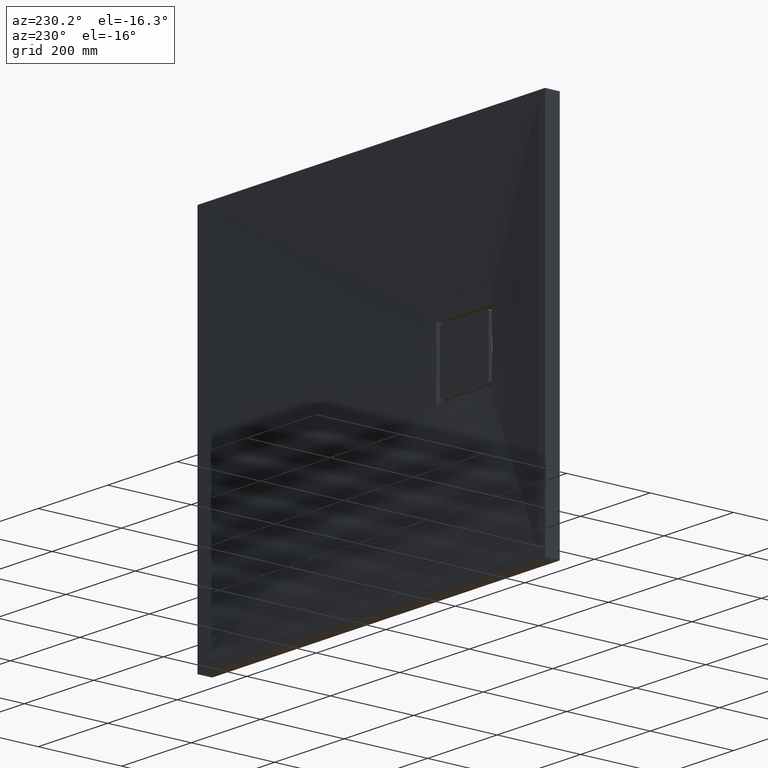
[diagram: clean part render]
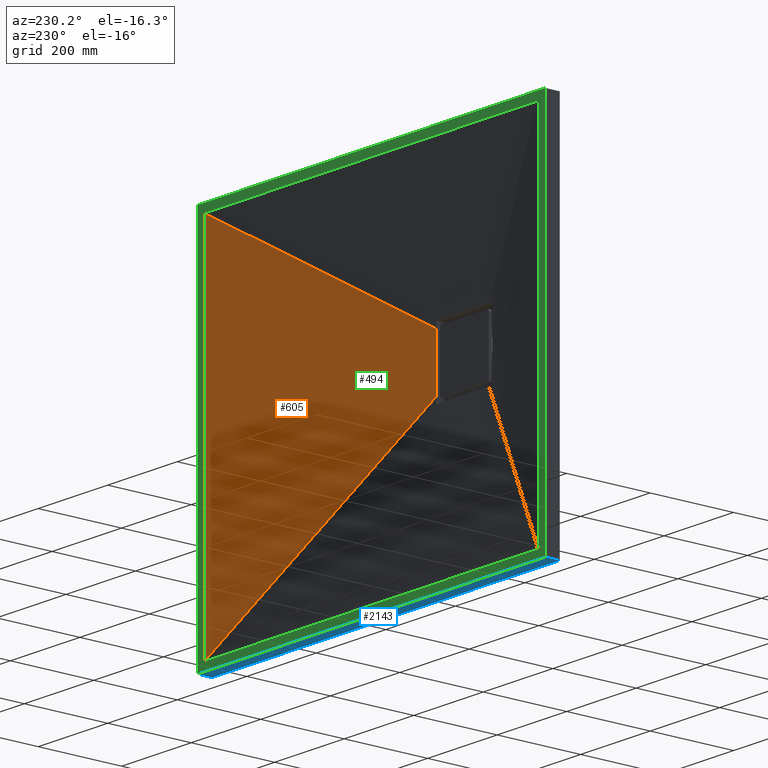
[diagram: same view with three faces highlighted in distinct colors, each labeled with its STEP entity id]
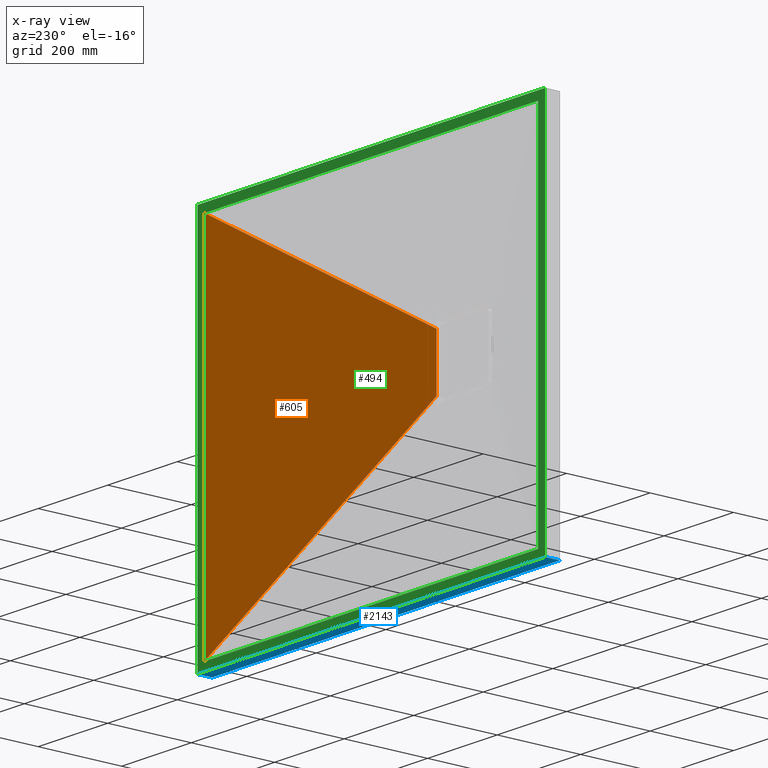
[diagram: x-ray of the same camera — body ghosted, the three highlighted faces saturated]
A machine part, auxiliary view with three faces highlighted in distinct colors.
The next image is the same camera in x-ray (body ghosted, the three faces saturated) — at least one of them is partly hidden behind the body in this view.
Their STEP definitions:

[orange] entity #605 — the highlighted face is a freeform B-spline surface patch.
#7 = FACE_OUTER_BOUND ( 'NONE', #867, .T. ) ;
#202 = CARTESIAN_POINT ( 'NONE',  ( 144.7934134289221500, 27.49999999999996800, -241.6899328634097800 ) ) ;
#208 = ORIENTED_EDGE ( 'NONE', *, *, #3138, .T. ) ;
#246 = LINE ( 'NONE', #1237, #1826 ) ;
#262 = ORIENTED_EDGE ( 'NONE', *, *, #2421, .T. ) ;
#302 = ORIENTED_EDGE ( 'NONE', *, *, #1813, .F. ) ;
#311 = VERTEX_POINT ( 'NONE', #1523 ) ;
#489 = DIRECTION ( 'NONE',  ( -0.8716803467127168800, -0.01950320447823043100, 0.4896866326232296500 ) ) ;
#539 = CARTESIAN_POINT ( 'NONE',  ( -170.4918016738412500, 20.00000000000001800, 10.19685271837222900 ) ) ;
#563 = CARTESIAN_POINT ( 'NONE',  ( -169.9999999999999400, 20.05373855218489300, 21.61634702286110600 ) ) ;
#576 = CARTESIAN_POINT ( 'NONE',  ( 480.0000000000000000, 35.00000000000002800, -430.0000000000002300 ) ) ;
#605 = ADVANCED_FACE ( 'NONE', ( #7 ), #668, .F. ) ;
#668 = B_SPLINE_SURFACE_WITH_KNOTS ( 'NONE', 3, 1, ( 
 ( #3263, #2466 ),
 ( #1276, #2375 ),
 ( #3217, #2995 ),
 ( #2991, #3150 ),
 ( #3095, #3235 ),
 ( #3173, #1307 ),
 ( #2802, #1026 ),
 ( #2538, #2719 ),
 ( #2883, #1408 ),
 ( #3067, #3121 ),
 ( #1614, #539 ),
 ( #2075, #3111 ),
 ( #2416, #1236 ),
 ( #2454, #2225 ),
 ( #2189, #2451 ),
 ( #2294, #2449 ),
 ( #2279, #2353 ),
 ( #2573, #2795 ) ),
 .UNSPECIFIED., .F., .F., .F.,
 ( 4, 2, 2, 2, 2, 2, 2, 2, 4 ),
 ( 2, 2 ),
 ( 0.0000000000000000000, 0.1249999999999998900, 0.2499999999999997800, 0.3749999999999997800, 0.5000000000000000000, 0.6249999999999997800, 0.7499999999999997800, 0.8749999999999998900, 1.000000000000000000 ),
 ( 0.0000000000000000000, 1.000000000000000000 ),
 .UNSPECIFIED. ) ;
#688 = VERTEX_POINT ( 'NONE', #576 ) ;
#720 = B_SPLINE_CURVE_WITH_KNOTS ( 'NONE', 3,
 ( #1301, #3058, #2713, #3268, #1084, #2695, #563, #800, #1163, #2943 ),
 .UNSPECIFIED., .F., .F.,
 ( 4, 2, 2, 2, 4 ),
 ( 0.0000000000000000000, 0.03242472401654036100, 0.06484944803308072300, 0.09727417204962107700, 0.1296988960661614500 ),
 .UNSPECIFIED. ) ;
#795 = VERTEX_POINT ( 'NONE', #1833 ) ;
#800 = CARTESIAN_POINT ( 'NONE',  ( -169.9999999999999400, 20.22499628330750800, 43.23218884595353000 ) ) ;
#804 = LINE ( 'NONE', #3175, #3288 ) ;
#836 = EDGE_CURVE ( 'NONE', #311, #795, #720, .T. ) ;
#867 = EDGE_LOOP ( 'NONE', ( #262, #1030, #302, #208 ) ) ;
#1026 = CARTESIAN_POINT ( 'NONE',  ( -172.4065071562401700, 20.00000000000001800, -20.11912708686369900 ) ) ;
#1030 = ORIENTED_EDGE ( 'NONE', *, *, #836, .T. ) ;
#1084 = CARTESIAN_POINT ( 'NONE',  ( -169.9999999999999100, 19.99999999967861100, -10.80828880300651200 ) ) ;
#1163 = CARTESIAN_POINT ( 'NONE',  ( -169.9999999999999400, 20.33918492977844700, 54.03983021598595800 ) ) ;
#1177 = DIRECTION ( 'NONE',  ( -0.8716803467127169900, -0.01950320447823042700, -0.4896866326232296500 ) ) ;
#1236 = CARTESIAN_POINT ( 'NONE',  ( -173.8285340766698800, 20.00000000000001800, 24.94202071493467800 ) ) ;
#1237 = CARTESIAN_POINT ( 'NONE',  ( 480.0000000000000000, 35.00000000000002800, 429.9999999999998300 ) ) ;
#1276 = CARTESIAN_POINT ( 'NONE',  ( 480.0000000000000000, 35.00000000000002800, -394.1666666666668600 ) ) ;
#1301 = CARTESIAN_POINT ( 'NONE',  ( -169.9999999999999400, 20.45672968461709100, -64.84743873662068800 ) ) ;
#1307 = CARTESIAN_POINT ( 'NONE',  ( -173.8285340766698800, 20.00000000000001800, -24.94202071493511900 ) ) ;
#1408 = CARTESIAN_POINT ( 'NONE',  ( -169.9999999999999400, 20.00000000000001800, -5.098844633448895700 ) ) ;
#1523 = CARTESIAN_POINT ( 'NONE',  ( -169.9999999999999400, 20.45672968461709100, -64.84743873662068800 ) ) ;
#1614 = CARTESIAN_POINT ( 'NONE',  ( 480.0000000000000000, 35.00000000000002800, 71.66666666666665700 ) ) ;
#1813 = EDGE_CURVE ( 'NONE', #2248, #795, #804, .T. ) ;
#1826 = VECTOR ( 'NONE', #2083, 1000.000000000000000 ) ;
#1833 = CARTESIAN_POINT ( 'NONE',  ( -169.9999999999999400, 20.45672968461709100, 64.84743873662024800 ) ) ;
#2075 = CARTESIAN_POINT ( 'NONE',  ( 480.0000000000000000, 35.00000000000002800, 143.3333333333332000 ) ) ;
#2083 = DIRECTION ( 'NONE',  ( -1.290957005378089100E-016, 0.0000000000000000000, -1.000000000000000000 ) ) ;
#2189 = CARTESIAN_POINT ( 'NONE',  ( 480.0000000000000000, 35.00000000000002800, 286.6666666666665200 ) ) ;
#2225 = CARTESIAN_POINT ( 'NONE',  ( -177.4580268146621600, 20.00000000000001800, 34.08604912029223000 ) ) ;
#2248 = VERTEX_POINT ( 'NONE', #2821 ) ;
#2279 = CARTESIAN_POINT ( 'NONE',  ( 480.0000000000000000, 35.00000000000002800, 394.1666666666664600 ) ) ;
#2294 = CARTESIAN_POINT ( 'NONE',  ( 480.0000000000000000, 35.00000000000002800, 358.3333333333330900 ) ) ;
#2353 = CARTESIAN_POINT ( 'NONE',  ( -187.4450376577665300, 20.00000000000001800, 50.06659820936165800 ) ) ;
#2375 = CARTESIAN_POINT ( 'NONE',  ( -187.4450376577665300, 20.00000000000001800, -50.06659820936221200 ) ) ;
#2416 = CARTESIAN_POINT ( 'NONE',  ( 480.0000000000000000, 35.00000000000002800, 179.1666666666664900 ) ) ;
#2421 = EDGE_CURVE ( 'NONE', #688, #311, #2507, .T. ) ;
#2449 = CARTESIAN_POINT ( 'NONE',  ( -184.6582981943014700, 20.00000000000001800, 46.39674873783194900 ) ) ;
#2451 = CARTESIAN_POINT ( 'NONE',  ( -179.6641333253674600, 20.00000000000001800, 38.40653782150449300 ) ) ;
#2454 = CARTESIAN_POINT ( 'NONE',  ( 480.0000000000000000, 35.00000000000002800, 250.8333333333331400 ) ) ;
#2466 = CARTESIAN_POINT ( 'NONE',  ( -190.4131731421552200, 20.00000000000001800, -53.37986572681941100 ) ) ;
#2507 = LINE ( 'NONE', #202, #3192 ) ;
#2538 = CARTESIAN_POINT ( 'NONE',  ( 480.0000000000000000, 35.00000000000002800, -71.66666666666665700 ) ) ;
#2573 = CARTESIAN_POINT ( 'NONE',  ( 480.0000000000000000, 35.00000000000002800, 429.9999999999998300 ) ) ;
#2695 = CARTESIAN_POINT ( 'NONE',  ( -169.9999999999999400, 20.00000000032142500, 10.80828900736812100 ) ) ;
#2713 = CARTESIAN_POINT ( 'NONE',  ( -169.9999999999998000, 20.22499628270625000, -43.23218878395622500 ) ) ;
#2719 = CARTESIAN_POINT ( 'NONE',  ( -170.4918016738412500, 20.00000000000001800, -10.19685271837267300 ) ) ;
#2795 = CARTESIAN_POINT ( 'NONE',  ( -190.4131731421552200, 20.00000000000001800, 53.37986572681896300 ) ) ;
#2802 = CARTESIAN_POINT ( 'NONE',  ( 480.0000000000000000, 35.00000000000002800, -143.3333333333334300 ) ) ;
#2821 = CARTESIAN_POINT ( 'NONE',  ( 480.0000000000000000, 35.00000000000002800, 429.9999999999998300 ) ) ;
#2883 = CARTESIAN_POINT ( 'NONE',  ( 480.0000000000000000, 35.00000000000002800, -35.83333333333327200 ) ) ;
#2943 = CARTESIAN_POINT ( 'NONE',  ( -169.9999999999999400, 20.45672968461709100, 64.84743873662024800 ) ) ;
#2991 = CARTESIAN_POINT ( 'NONE',  ( 480.0000000000000000, 35.00000000000002800, -286.6666666666668000 ) ) ;
#2995 = CARTESIAN_POINT ( 'NONE',  ( -184.6582981943014700, 20.00000000000001800, -46.39674873783250300 ) ) ;
#3058 = CARTESIAN_POINT ( 'NONE',  ( -169.9999999999999400, 20.33918492960751600, -54.03983020026994700 ) ) ;
#3067 = CARTESIAN_POINT ( 'NONE',  ( 480.0000000000000000, 35.00000000000002800, 35.83333333333338500 ) ) ;
#3095 = CARTESIAN_POINT ( 'NONE',  ( 480.0000000000000000, 35.00000000000002800, -250.8333333333334600 ) ) ;
#3111 = CARTESIAN_POINT ( 'NONE',  ( -172.4065071562397400, 20.00000000000001800, 20.11912708686325100 ) ) ;
#3121 = CARTESIAN_POINT ( 'NONE',  ( -169.9999999999999400, 20.00000000000001800, 5.098844633448451600 ) ) ;
#3138 = EDGE_CURVE ( 'NONE', #2248, #688, #246, .T. ) ;
#3150 = CARTESIAN_POINT ( 'NONE',  ( -179.6641333253674600, 20.00000000000001800, -38.40653782150494100 ) ) ;
#3173 = CARTESIAN_POINT ( 'NONE',  ( 480.0000000000000000, 35.00000000000002800, -179.1666666666668000 ) ) ;
#3175 = CARTESIAN_POINT ( 'NONE',  ( 144.7934134289226100, 27.49999999999996800, 241.6899328634093500 ) ) ;
#3192 = VECTOR ( 'NONE', #489, 1000.000000000000100 ) ;
#3217 = CARTESIAN_POINT ( 'NONE',  ( 480.0000000000000000, 35.00000000000002800, -358.3333333333334300 ) ) ;
#3235 = CARTESIAN_POINT ( 'NONE',  ( -177.4580268146617100, 20.00000000000001800, -34.08604912029267100 ) ) ;
#3263 = CARTESIAN_POINT ( 'NONE',  ( 480.0000000000000000, 35.00000000000002800, -430.0000000000002300 ) ) ;
#3268 = CARTESIAN_POINT ( 'NONE',  ( -169.9999999999998000, 20.05373855184037200, -21.61634696548861700 ) ) ;
#3288 = VECTOR ( 'NONE', #1177, 1000.000000000000100 ) ;

[blue] entity #2143 — the highlighted planar face has unit normal (0, 0, 1).
#84 = VERTEX_POINT ( 'NONE', #3237 ) ;
#359 = CARTESIAN_POINT ( 'NONE',  ( 500.0000000000000000, 0.0000000000000000000, -450.0000000000002300 ) ) ;
#372 = VECTOR ( 'NONE', #2494, 1000.000000000000000 ) ;
#387 = ORIENTED_EDGE ( 'NONE', *, *, #2973, .F. ) ;
#459 = ORIENTED_EDGE ( 'NONE', *, *, #2707, .T. ) ;
#513 = EDGE_LOOP ( 'NONE', ( #459, #387, #1212, #3007 ) ) ;
#773 = DIRECTION ( 'NONE',  ( 1.000000000000000000, 0.0000000000000000000, -0.0000000000000000000 ) ) ;
#934 = VERTEX_POINT ( 'NONE', #1461 ) ;
#954 = DIRECTION ( 'NONE',  ( 0.0000000000000000000, 0.0000000000000000000, 1.000000000000000000 ) ) ;
#960 = CARTESIAN_POINT ( 'NONE',  ( -500.0000000000000000, 35.00000000000002800, -450.0000000000002300 ) ) ;
#965 = PLANE ( 'NONE',  #3167 ) ;
#1080 = FACE_OUTER_BOUND ( 'NONE', #513, .T. ) ;
#1212 = ORIENTED_EDGE ( 'NONE', *, *, #1651, .F. ) ;
#1385 = LINE ( 'NONE', #2293, #3036 ) ;
#1401 = DIRECTION ( 'NONE',  ( -1.000000000000000000, -0.0000000000000000000, -0.0000000000000000000 ) ) ;
#1450 = VECTOR ( 'NONE', #2090, 1000.000000000000000 ) ;
#1461 = CARTESIAN_POINT ( 'NONE',  ( 500.0000000000000000, 35.00000000000002800, -450.0000000000002300 ) ) ;
#1472 = EDGE_CURVE ( 'NONE', #934, #1679, #3151, .T. ) ;
#1533 = CARTESIAN_POINT ( 'NONE',  ( -500.0000000000000000, 35.00000000000002800, -450.0000000000002300 ) ) ;
#1651 = EDGE_CURVE ( 'NONE', #934, #84, #2092, .T. ) ;
#1679 = VERTEX_POINT ( 'NONE', #359 ) ;
#2009 = VERTEX_POINT ( 'NONE', #3189 ) ;
#2090 = DIRECTION ( 'NONE',  ( -0.0000000000000000000, -1.000000000000000000, -0.0000000000000000000 ) ) ;
#2092 = LINE ( 'NONE', #1533, #2692 ) ;
#2143 = ADVANCED_FACE ( 'NONE', ( #1080 ), #965, .F. ) ;
#2293 = CARTESIAN_POINT ( 'NONE',  ( -500.0000000000000000, 0.0000000000000000000, -450.0000000000002300 ) ) ;
#2302 = DIRECTION ( 'NONE',  ( -1.000000000000000000, -0.0000000000000000000, -0.0000000000000000000 ) ) ;
#2377 = CARTESIAN_POINT ( 'NONE',  ( -500.0000000000000000, 35.00000000000002800, -450.0000000000002300 ) ) ;
#2411 = CARTESIAN_POINT ( 'NONE',  ( 500.0000000000000000, 35.00000000000002800, -450.0000000000002300 ) ) ;
#2431 = LINE ( 'NONE', #2377, #372 ) ;
#2494 = DIRECTION ( 'NONE',  ( -0.0000000000000000000, -1.000000000000000000, -0.0000000000000000000 ) ) ;
#2692 = VECTOR ( 'NONE', #1401, 1000.000000000000000 ) ;
#2707 = EDGE_CURVE ( 'NONE', #1679, #2009, #1385, .T. ) ;
#2973 = EDGE_CURVE ( 'NONE', #84, #2009, #2431, .T. ) ;
#3007 = ORIENTED_EDGE ( 'NONE', *, *, #1472, .T. ) ;
#3036 = VECTOR ( 'NONE', #2302, 1000.000000000000000 ) ;
#3151 = LINE ( 'NONE', #2411, #1450 ) ;
#3167 = AXIS2_PLACEMENT_3D ( 'NONE', #960, #954, #773 ) ;
#3189 = CARTESIAN_POINT ( 'NONE',  ( -500.0000000000000000, 0.0000000000000000000, -450.0000000000002300 ) ) ;
#3237 = CARTESIAN_POINT ( 'NONE',  ( -500.0000000000000000, 35.00000000000002800, -450.0000000000002300 ) ) ;

[green] entity #494 — the highlighted planar face has unit normal (0, 1, 0).
#84 = VERTEX_POINT ( 'NONE', #3237 ) ;
#150 = EDGE_LOOP ( 'NONE', ( #1984, #1269, #842, #390 ) ) ;
#246 = LINE ( 'NONE', #1237, #1826 ) ;
#352 = CARTESIAN_POINT ( 'NONE',  ( 500.0000000000000000, 35.00000000000002800, 449.9999999999998300 ) ) ;
#390 = ORIENTED_EDGE ( 'NONE', *, *, #1326, .F. ) ;
#413 = PLANE ( 'NONE',  #2035 ) ;
#483 = VERTEX_POINT ( 'NONE', #352 ) ;
#494 = ADVANCED_FACE ( 'NONE', ( #918, #1525 ), #413, .T. ) ;
#576 = CARTESIAN_POINT ( 'NONE',  ( 480.0000000000000000, 35.00000000000002800, -430.0000000000002300 ) ) ;
#688 = VERTEX_POINT ( 'NONE', #576 ) ;
#736 = EDGE_LOOP ( 'NONE', ( #1224, #1347, #2837, #2806 ) ) ;
#842 = ORIENTED_EDGE ( 'NONE', *, *, #1471, .F. ) ;
#861 = VECTOR ( 'NONE', #2257, 1000.000000000000000 ) ;
#918 = FACE_BOUND ( 'NONE', #150, .T. ) ;
#934 = VERTEX_POINT ( 'NONE', #1461 ) ;
#1222 = CARTESIAN_POINT ( 'NONE',  ( -500.0000000000000000, 35.00000000000002800, -450.0000000000002300 ) ) ;
#1224 = ORIENTED_EDGE ( 'NONE', *, *, #2855, .T. ) ;
#1225 = VECTOR ( 'NONE', #2311, 1000.000000000000000 ) ;
#1234 = VERTEX_POINT ( 'NONE', #1739 ) ;
#1235 = DIRECTION ( 'NONE',  ( 1.233581138472396200E-016, 0.0000000000000000000, 1.000000000000000000 ) ) ;
#1237 = CARTESIAN_POINT ( 'NONE',  ( 480.0000000000000000, 35.00000000000002800, 429.9999999999998300 ) ) ;
#1269 = ORIENTED_EDGE ( 'NONE', *, *, #3138, .F. ) ;
#1318 = LINE ( 'NONE', #2053, #1225 ) ;
#1326 = EDGE_CURVE ( 'NONE', #1979, #3218, #1318, .T. ) ;
#1347 = ORIENTED_EDGE ( 'NONE', *, *, #1483, .T. ) ;
#1401 = DIRECTION ( 'NONE',  ( -1.000000000000000000, -0.0000000000000000000, -0.0000000000000000000 ) ) ;
#1461 = CARTESIAN_POINT ( 'NONE',  ( 500.0000000000000000, 35.00000000000002800, -450.0000000000002300 ) ) ;
#1464 = LINE ( 'NONE', #2862, #3054 ) ;
#1471 = EDGE_CURVE ( 'NONE', #3218, #2248, #2715, .T. ) ;
#1483 = EDGE_CURVE ( 'NONE', #1234, #483, #3158, .T. ) ;
#1522 = CARTESIAN_POINT ( 'NONE',  ( -480.0000000000000000, 35.00000000000002800, -430.0000000000002300 ) ) ;
#1525 = FACE_OUTER_BOUND ( 'NONE', #736, .T. ) ;
#1533 = CARTESIAN_POINT ( 'NONE',  ( -500.0000000000000000, 35.00000000000002800, -450.0000000000002300 ) ) ;
#1604 = CARTESIAN_POINT ( 'NONE',  ( -500.0000000000000000, 35.00000000000002800, 449.9999999999998300 ) ) ;
#1651 = EDGE_CURVE ( 'NONE', #934, #84, #2092, .T. ) ;
#1714 = LINE ( 'NONE', #1222, #2034 ) ;
#1739 = CARTESIAN_POINT ( 'NONE',  ( -500.0000000000000000, 35.00000000000002800, 449.9999999999998300 ) ) ;
#1826 = VECTOR ( 'NONE', #2083, 1000.000000000000000 ) ;
#1877 = LINE ( 'NONE', #2028, #861 ) ;
#1934 = DIRECTION ( 'NONE',  ( 1.000000000000000000, 0.0000000000000000000, 0.0000000000000000000 ) ) ;
#1945 = CARTESIAN_POINT ( 'NONE',  ( -500.0000000000000000, 35.00000000000002800, 449.9999999999998300 ) ) ;
#1979 = VERTEX_POINT ( 'NONE', #1522 ) ;
#1984 = ORIENTED_EDGE ( 'NONE', *, *, #2915, .F. ) ;
#2028 = CARTESIAN_POINT ( 'NONE',  ( 480.0000000000000000, 35.00000000000002800, -430.0000000000002300 ) ) ;
#2034 = VECTOR ( 'NONE', #1235, 1000.000000000000000 ) ;
#2035 = AXIS2_PLACEMENT_3D ( 'NONE', #1604, #2101, #2300 ) ;
#2053 = CARTESIAN_POINT ( 'NONE',  ( -480.0000000000000000, 35.00000000000002800, -430.0000000000002300 ) ) ;
#2083 = DIRECTION ( 'NONE',  ( -1.290957005378089100E-016, 0.0000000000000000000, -1.000000000000000000 ) ) ;
#2092 = LINE ( 'NONE', #1533, #2692 ) ;
#2101 = DIRECTION ( 'NONE',  ( 0.0000000000000000000, 1.000000000000000000, 0.0000000000000000000 ) ) ;
#2110 = DIRECTION ( 'NONE',  ( 1.000000000000000000, 0.0000000000000000000, 0.0000000000000000000 ) ) ;
#2137 = CARTESIAN_POINT ( 'NONE',  ( -480.0000000000000000, 35.00000000000002800, 429.9999999999998300 ) ) ;
#2248 = VERTEX_POINT ( 'NONE', #2821 ) ;
#2257 = DIRECTION ( 'NONE',  ( -1.000000000000000000, 0.0000000000000000000, 0.0000000000000000000 ) ) ;
#2300 = DIRECTION ( 'NONE',  ( 0.0000000000000000000, -0.0000000000000000000, 1.000000000000000000 ) ) ;
#2311 = DIRECTION ( 'NONE',  ( 1.290957005378089100E-016, 0.0000000000000000000, 1.000000000000000000 ) ) ;
#2312 = DIRECTION ( 'NONE',  ( -1.233581138472396200E-016, -0.0000000000000000000, -1.000000000000000000 ) ) ;
#2542 = EDGE_CURVE ( 'NONE', #483, #934, #1464, .T. ) ;
#2692 = VECTOR ( 'NONE', #1401, 1000.000000000000000 ) ;
#2697 = CARTESIAN_POINT ( 'NONE',  ( -480.0000000000000000, 35.00000000000002800, 429.9999999999998300 ) ) ;
#2715 = LINE ( 'NONE', #2137, #3212 ) ;
#2806 = ORIENTED_EDGE ( 'NONE', *, *, #1651, .T. ) ;
#2821 = CARTESIAN_POINT ( 'NONE',  ( 480.0000000000000000, 35.00000000000002800, 429.9999999999998300 ) ) ;
#2837 = ORIENTED_EDGE ( 'NONE', *, *, #2542, .T. ) ;
#2855 = EDGE_CURVE ( 'NONE', #84, #1234, #1714, .T. ) ;
#2862 = CARTESIAN_POINT ( 'NONE',  ( 500.0000000000000000, 35.00000000000002800, -450.0000000000002300 ) ) ;
#2915 = EDGE_CURVE ( 'NONE', #688, #1979, #1877, .T. ) ;
#3054 = VECTOR ( 'NONE', #2312, 1000.000000000000000 ) ;
#3138 = EDGE_CURVE ( 'NONE', #2248, #688, #246, .T. ) ;
#3158 = LINE ( 'NONE', #1945, #3269 ) ;
#3212 = VECTOR ( 'NONE', #2110, 1000.000000000000000 ) ;
#3218 = VERTEX_POINT ( 'NONE', #2697 ) ;
#3237 = CARTESIAN_POINT ( 'NONE',  ( -500.0000000000000000, 35.00000000000002800, -450.0000000000002300 ) ) ;
#3269 = VECTOR ( 'NONE', #1934, 1000.000000000000000 ) ;